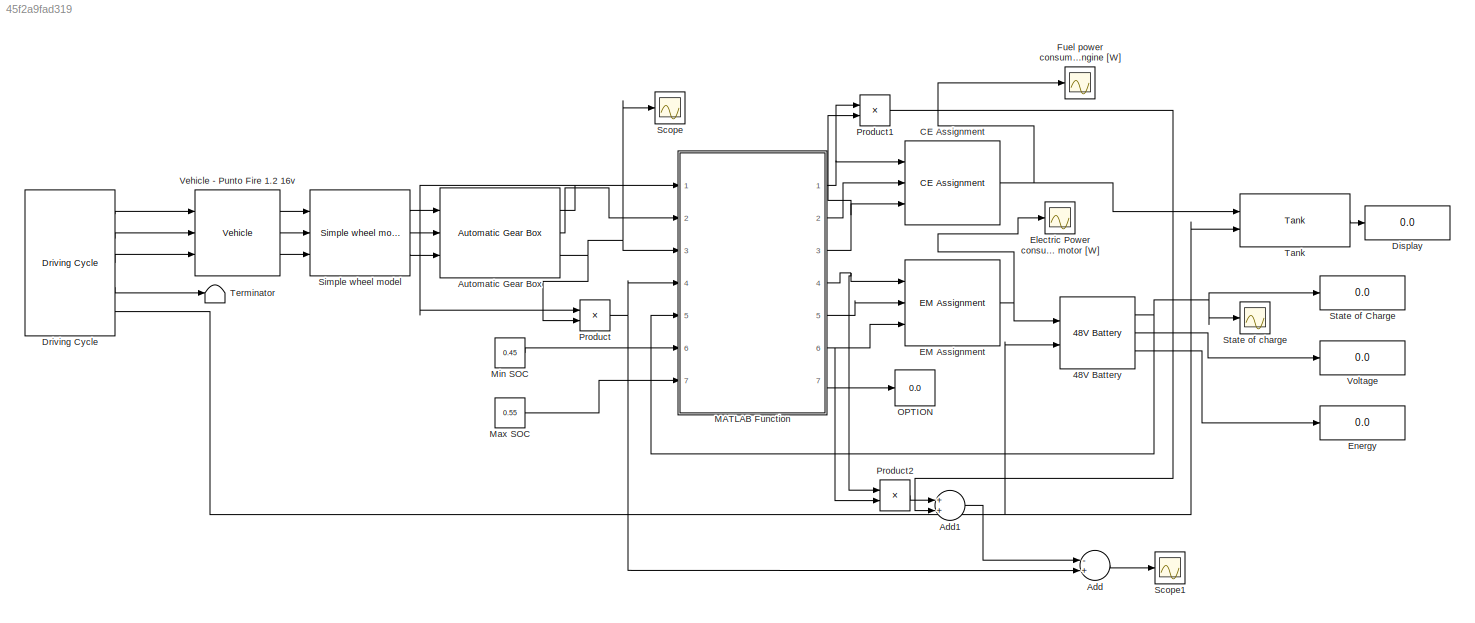
MODEL slx_45f2a9fad319
KIND model
CONFIG AbsTol = auto
CONFIG EnableMultiTasking = off
CONFIG FixedStep = auto
CONFIG MaxStep = auto
CONFIG MinStep = auto
CONFIG RelTol = 1e-3
CONFIG SampleTimeConstraint = Unconstrained
CONFIG Solver = VariableStepAuto
CONFIG SolverName = VariableStepAuto
CONFIG StartTime = 0.0
CONFIG StopTime = 1061
BLOCK [Reference] 48V Battery  REF=qss_tb_library/Energy Buffer/48V Battery  (lib defined in mdl_a75e96b0ff2a, mdl_aad2a3137e65)
  Ports = [2, 3]
  SourceBlock = qss_tb_library/Energy Buffer/48V Battery
  SourceType = Battery
  Tag = battery
BLOCK [Sum] Add
  InputSameDT = off
  Inputs = -+
  OutDataTypeStr = Inherit: Inherit via internal rule
  Ports = [2, 1]
  SaturateOnIntegerOverflow = off
BLOCK [Sum] Add1
  InputSameDT = off
  OutDataTypeStr = Inherit: Inherit via internal rule
  Ports = [2, 1]
  SaturateOnIntegerOverflow = off
BLOCK [Reference] Automatic Gear Box  REF=qss_tb_library/Gear System/Automatic Gear Box  (lib defined in mdl_a75e96b0ff2a, mdl_aad2a3137e65)
  Ports = [3, 3]
  SourceBlock = qss_tb_library/Gear System/Automatic Gear Box
  SourceType = Automatic Gear Box
  Tag = transmission
BLOCK [Reference] CE Assignment  REF=qss_tb_library/Energy Converter/CE Assignment  (lib defined in mdl_a75e96b0ff2a, mdl_aad2a3137e65)
  Ports = [3, 1]
  SourceBlock = qss_tb_library/Energy Converter/CE Assignment
  SourceType = Combustion Engine (based on consumption map)
  Tag = combustion engine
BLOCK [Display] Display
  Decimation = 1
  Ports = [1]
BLOCK [Reference] Driving Cycle  REF=qss_tb_library/Driving Cycle/Driving Cycle  (lib defined in mdl_a75e96b0ff2a, mdl_aad2a3137e65)
  Ports = [0, 5]
  SourceBlock = qss_tb_library/Driving Cycle/Driving Cycle
  SourceType = Driving Cycle
  Tag = cycle
BLOCK [Reference] EM Assignment  REF=qss_tb_library/Energy Converter/EM Assignment  (lib defined in mdl_a75e96b0ff2a, mdl_aad2a3137e65)
  Ports = [3, 1]
  SourceBlock = qss_tb_library/Energy Converter/EM Assignment
  SourceType = Electric Motor
BLOCK [Scope] Electric Power consumed by the  motor [W]
  Floating = off
  NumInputPorts = 1
  Ports = [1]
  ScopeSpecificationString = Simulink.scopes.TimeScopeBlockCfg('CurrentConfiguration', extmgr.ConfigurationSet(extmgr.Configuration('Core','General UI',true),extmgr.Configuration('Core','Source UI',true),extmgr.Configuration('Sources','WiredSimulink',true),extmgr.Configuration('Visuals','Time Domain',true,'SerializedDisplays',{struct('MinYLimReal','-714.62475','MaxYLimReal','1266.4982','YLabelReal','','MinYLimMag',' 0.00000',...<+1347ch>
BLOCK [Display] Energy
  Decimation = 1
  Ports = [1]
BLOCK [Scope] Fuel power consumed by the combustion engine [W]
  Floating = off
  NumInputPorts = 1
  Ports = [1]
  ScopeSpecificationString = Simulink.scopes.TimeScopeBlockCfg('CurrentConfiguration', extmgr.ConfigurationSet(extmgr.Configuration('Core','General UI',true),extmgr.Configuration('Core','Source UI',true),extmgr.Configuration('Sources','WiredSimulink',true,'DataLoggingVariableName','ScopeData2'),extmgr.Configuration('Visuals','Time Domain',true,'SerializedDisplays',{struct('MinYLimReal','1932.8577','MaxYLimReal','7604.28072','...<+1390ch>
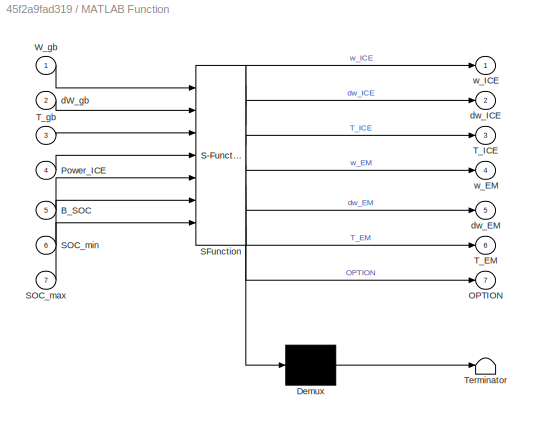
BLOCK [SubSystem] MATLAB Function
  ErrorFcn = Stateflow.Translate.translate
  PermitHierarchicalResolution = ExplicitOnly
  Ports = [7, 7]
  RequestExecContextInheritance = off
  SFBlockType = MATLAB Function
  TreatAsAtomicUnit = on
BLOCK [Demux] MATLAB Function/ Demux 
  Outputs = 1
  Ports = [1, 1]
BLOCK [S-Function] MATLAB Function/ SFunction 
  EnableBusSupport = on
  FunctionName = sf_sfun
  PortCounts = [7 8]
  Ports = [7, 8]
  SFcnIsStateOwnerBlock = off
  SFunctionDeploymentMode = off
  Tag = Stateflow S-Function 2
BLOCK [Terminator] MATLAB Function/ Terminator 
BLOCK [Inport] MATLAB Function/B_SOC
  IconDisplay = Port number
  Port = 5
BLOCK [Outport] MATLAB Function/OPTION
  IconDisplay = Port number
  Port = 7
BLOCK [Inport] MATLAB Function/Power_ICE
  IconDisplay = Port number
  Port = 4
BLOCK [Inport] MATLAB Function/SOC_max
  IconDisplay = Port number
  Port = 7
BLOCK [Inport] MATLAB Function/SOC_min
  IconDisplay = Port number
  Port = 6
BLOCK [Outport] MATLAB Function/T_EM
  IconDisplay = Port number
  Port = 6
BLOCK [Outport] MATLAB Function/T_ICE
  IconDisplay = Port number
  Port = 3
BLOCK [Inport] MATLAB Function/T_gb
  IconDisplay = Port number
  Port = 3
BLOCK [Inport] MATLAB Function/W_gb
  IconDisplay = Port number
BLOCK [Inport] MATLAB Function/dW_gb
  IconDisplay = Port number
  Port = 2
BLOCK [Outport] MATLAB Function/dw_EM
  IconDisplay = Port number
  Port = 5
BLOCK [Outport] MATLAB Function/dw_ICE
  IconDisplay = Port number
  Port = 2
BLOCK [Outport] MATLAB Function/w_EM
  IconDisplay = Port number
  Port = 4
BLOCK [Outport] MATLAB Function/w_ICE
  IconDisplay = Port number
BLOCK [Constant] Max SOC
  Value = 0.55
BLOCK [Constant] Min SOC
  Value = 0.45
BLOCK [Display] OPTION
  Decimation = 1
  Ports = [1]
BLOCK [Product] Product
  InputSameDT = off
  OutDataTypeStr = Inherit: Inherit via internal rule
  Ports = [2, 1]
  RndMeth = Floor
  SaturateOnIntegerOverflow = off
BLOCK [Product] Product1
  InputSameDT = off
  OutDataTypeStr = Inherit: Inherit via internal rule
  Ports = [2, 1]
  RndMeth = Floor
  SaturateOnIntegerOverflow = off
BLOCK [Product] Product2
  InputSameDT = off
  OutDataTypeStr = Inherit: Inherit via internal rule
  Ports = [2, 1]
  RndMeth = Floor
  SaturateOnIntegerOverflow = off
BLOCK [Scope] Scope
  Floating = off
  NumInputPorts = 1
  Ports = [1]
  ScopeSpecificationString = Simulink.scopes.TimeScopeBlockCfg('CurrentConfiguration', extmgr.ConfigurationSet(extmgr.Configuration('Core','General UI',true),extmgr.Configuration('Core','Source UI',true),extmgr.Configuration('Sources','WiredSimulink',true,'DataLoggingVariableName','ScopeData1'),extmgr.Configuration('Visuals','Time Domain',true,'SerializedDisplays',{struct('MinYLimReal','-10.19388','MaxYLimReal','29.95817','YL...<+1385ch>
BLOCK [Scope] Scope1
  Floating = off
  NumInputPorts = 1
  Ports = [1]
  ScopeSpecificationString = Simulink.scopes.TimeScopeBlockCfg('CurrentConfiguration', extmgr.ConfigurationSet(extmgr.Configuration('Core','General UI',true),extmgr.Configuration('Core','Source UI',true),extmgr.Configuration('Sources','WiredSimulink',true,'DataLoggingVariableName','ScopeData4'),extmgr.Configuration('Visuals','Time Domain',true,'SerializedDisplays',{struct('MinYLimReal','-0.00000000000028','MaxYLimReal','0.000...<+1434ch>
BLOCK [Reference] Simple wheel model  REF=qss_tb_library/Vehicle/Simple wheel model  (lib defined in mdl_a75e96b0ff2a, mdl_aad2a3137e65)
  Ports = [3, 3]
  SourceBlock = qss_tb_library/Vehicle/Simple wheel model
  SourceType = Simple wheel model
  Tag = simple transmission
BLOCK [Display] State of Charge
  Decimation = 1
  Ports = [1]
BLOCK [Scope] State of charge
  Floating = off
  NumInputPorts = 1
  Ports = [1]
  ScopeSpecificationString = Simulink.scopes.TimeScopeBlockCfg('CurrentConfiguration', extmgr.ConfigurationSet(extmgr.Configuration('Core','General UI',true),extmgr.Configuration('Core','Source UI',true),extmgr.Configuration('Sources','WiredSimulink',true,'DataLoggingVariableName','ScopeData3'),extmgr.Configuration('Visuals','Time Domain',true,'SerializedDisplays',{struct('MinYLimReal','0.48293','MaxYLimReal','0.49079','YLabe...<+1372ch>
BLOCK [Reference] Tank  REF=qss_tb_library/Energy Source/Tank  (lib defined in mdl_a75e96b0ff2a, mdl_aad2a3137e65)
  Ports = [2, 1]
  SourceBlock = qss_tb_library/Energy Source/Tank
  SourceType = Tank
  Tag = tank
BLOCK [Terminator] Terminator
BLOCK [Reference] Vehicle - Punto Fire 1.2 16v  REF=qss_tb_library/Vehicle/Vehicle  (lib defined in mdl_a75e96b0ff2a, mdl_aad2a3137e65)
  Ports = [3, 3]
  SourceBlock = qss_tb_library/Vehicle/Vehicle
  SourceType = Vehicle
  Tag = vehicle
BLOCK [Display] Voltage
  Decimation = 1
  Ports = [1]
NET 48V Battery:1 -> MATLAB Function:5, State of Charge:1, State of charge:1
LINE 48V Battery:2 -> Voltage:1
LINE 48V Battery:3 -> Energy:1
LINE Add1:1 -> Add:1
LINE Add:1 -> Scope1:1
NET Automatic Gear Box:1 -> MATLAB Function:1, Product:1
LINE Automatic Gear Box:2 -> MATLAB Function:2
NET Automatic Gear Box:3 -> MATLAB Function:3, Product:2, Scope:1
NET CE Assignment:1 -> Fuel power consumed by the combustion engine [W]:1, Tank:1
LINE Driving Cycle:1 -> Vehicle - Punto Fire 1.2 16v:1
LINE Driving Cycle:2 -> Vehicle - Punto Fire 1.2 16v:2
LINE Driving Cycle:3 -> Vehicle - Punto Fire 1.2 16v:3
LINE Driving Cycle:4 -> Terminator:1
NET Driving Cycle:5 -> 48V Battery:2, Tank:2
NET EM Assignment:1 -> 48V Battery:1, Electric Power consumed by the  motor [W]:1
NET MATLAB Function:1 -> CE Assignment:1, Product1:1
LINE MATLAB Function:2 -> CE Assignment:2
NET MATLAB Function:3 -> CE Assignment:3, Product1:2
NET MATLAB Function:4 -> EM Assignment:1, Product2:1
LINE MATLAB Function:5 -> EM Assignment:2
NET MATLAB Function:6 -> EM Assignment:3, Product2:2
LINE MATLAB Function:7 -> OPTION:1
LINE Max SOC:1 -> MATLAB Function:7
LINE Min SOC:1 -> MATLAB Function:6
LINE Product1:1 -> Add1:2
LINE Product2:1 -> Add1:1
NET Product:1 -> Add:2, MATLAB Function:4
LINE Simple wheel model:1 -> Automatic Gear Box:1
LINE Simple wheel model:2 -> Automatic Gear Box:2
LINE Simple wheel model:3 -> Automatic Gear Box:3
LINE Tank:1 -> Display:1
LINE Vehicle - Punto Fire 1.2 16v:1 -> Simple wheel model:1
LINE Vehicle - Punto Fire 1.2 16v:2 -> Simple wheel model:2
LINE Vehicle - Punto Fire 1.2 16v:3 -> Simple wheel model:3
note: NET lines group one-source signal fan-out (src -> all destinations, sorted); 1:1 wires keep LINE
CHART MATLAB Function states=1 transitions=1
  STATE_LABEL 'eML_blk_kernel()'
  STATE_LABEL 'SCRIPT:\nfunction [w_ICE,dw_ICE,T_ICE,w_EM,dw_EM,T_EM,OPTION] = fcn(W_gb,dW_gb,T_gb,Power_ICE,B_SOC,SOC_min,SOC_max)\n\n%initialize\n\npower_demand = (W_gb*T_gb);\noptimum_w = (2500/60)*2*pi;\noptimum_T = 100.5;\n\n%High SOC and High power demand (IC engine running & Electrical Motor on)\nif B_SOC>SOC_max && Power_ICE>35e3\n    \n        w_ICE = W_gb;\n        dw_ICE = dW_gb;\n        T_ICE = T_gb;\n        \n   ...<+1942ch>'
